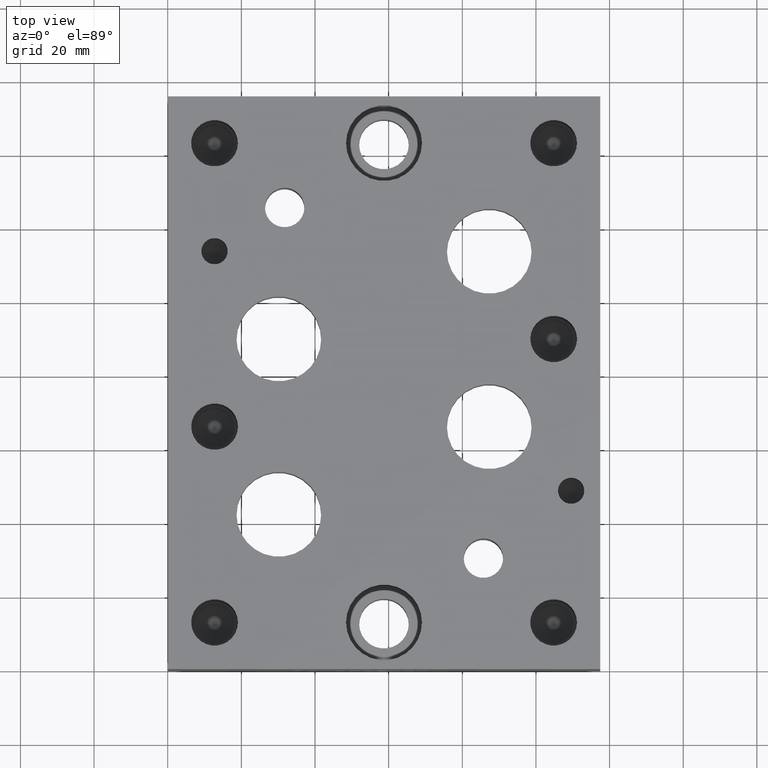
[diagram: clean part render]
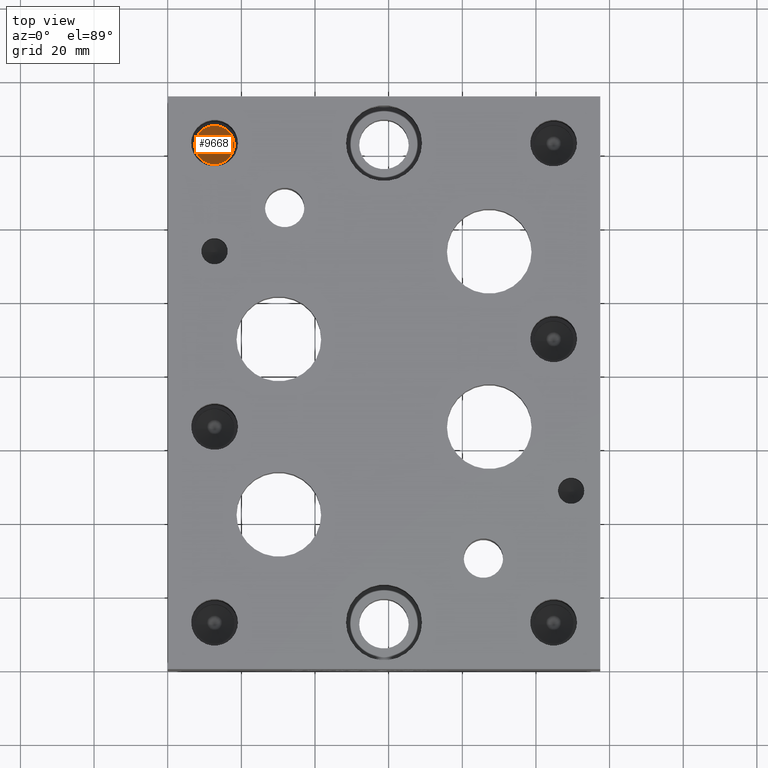
[diagram: same view with one face highlighted and labeled with its STEP entity id]
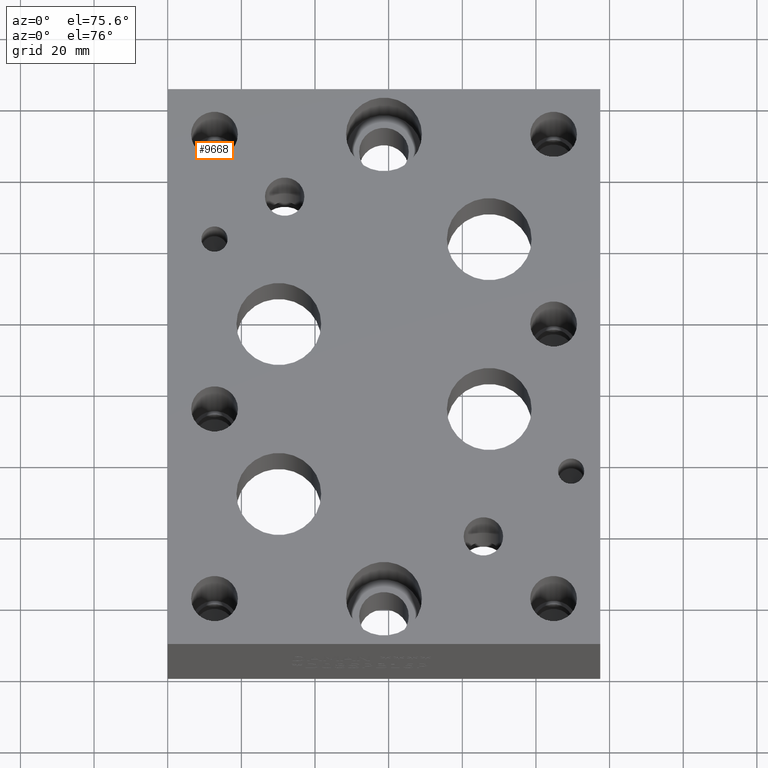
[diagram: same view with one face highlighted and labeled with its STEP entity id]
A machine part, top view. The second image highlights one B-rep face of the part: STEP entity #9668.
A second angle (auxiliary view) of the same face is appended — the face is thin or edge-on in the first view.
In plain terms, the highlighted conical surface has half-angle 60 deg.
Its self-contained STEP definition (entity closure, byte-faithful):
#56=CONICAL_SURFACE('',#10126,2.6797,1.0471975511966);
#148=CIRCLE('',#10127,5.3594);
#149=CIRCLE('',#10128,5.3594);
#1129=FACE_OUTER_BOUND('',#1679,.T.);
#1679=EDGE_LOOP('',(#8349,#8350,#8351,#8352));
#2644=LINE('',#16439,#3584);
#3584=VECTOR('',#11949,2.6797);
#4467=VERTEX_POINT('',#16435);
#4468=VERTEX_POINT('',#16436);
#4469=VERTEX_POINT('',#16438);
#5782=EDGE_CURVE('',#4467,#4468,#148,.T.);
#5783=EDGE_CURVE('',#4468,#4469,#2644,.T.);
#5784=EDGE_CURVE('',#4468,#4467,#149,.T.);
#8349=ORIENTED_EDGE('',*,*,#5782,.T.);
#8350=ORIENTED_EDGE('',*,*,#5783,.T.);
#8351=ORIENTED_EDGE('',*,*,#5783,.F.);
#8352=ORIENTED_EDGE('',*,*,#5784,.T.);
#9668=ADVANCED_FACE('',(#1129),#56,.F.);
#10126=AXIS2_PLACEMENT_3D('',#16434,#11945,#11946);
#10127=AXIS2_PLACEMENT_3D('',#16437,#11947,#11948);
#10128=AXIS2_PLACEMENT_3D('',#16440,#11950,#11951);
#11945=DIRECTION('center_axis',(0.,0.,1.));
#11946=DIRECTION('ref_axis',(1.,0.,0.));
#11947=DIRECTION('center_axis',(0.,0.,1.));
#11948=DIRECTION('ref_axis',(1.,0.,0.));
#11949=DIRECTION('',(0.866025403784439,1.06057523872491E-16,-0.5));
#11950=DIRECTION('center_axis',(0.,0.,1.));
#11951=DIRECTION('ref_axis',(1.,0.,0.));
#16434=CARTESIAN_POINT('Origin',(12.7,142.875,4.54887448365256));
#16435=CARTESIAN_POINT('',(18.0594,142.875,6.096));
#16436=CARTESIAN_POINT('',(7.3406,142.875,6.096));
#16437=CARTESIAN_POINT('Origin',(12.7,142.875,6.096));
#16438=CARTESIAN_POINT('',(12.7,142.875,3.00174896730512));
#16439=CARTESIAN_POINT('',(10.0203,142.875,4.54887448365256));
#16440=CARTESIAN_POINT('Origin',(12.7,142.875,6.096));